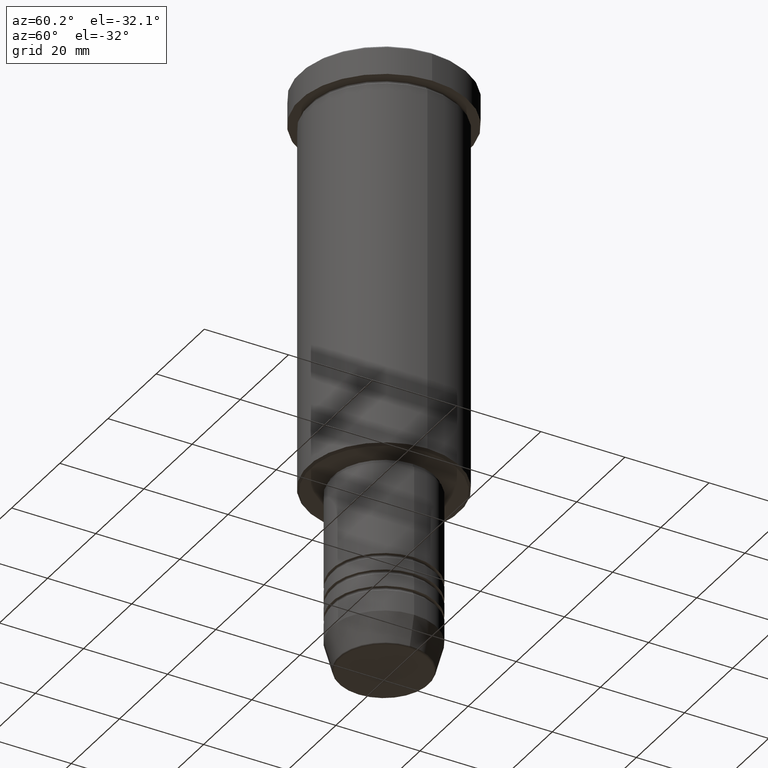
[diagram: clean part render]
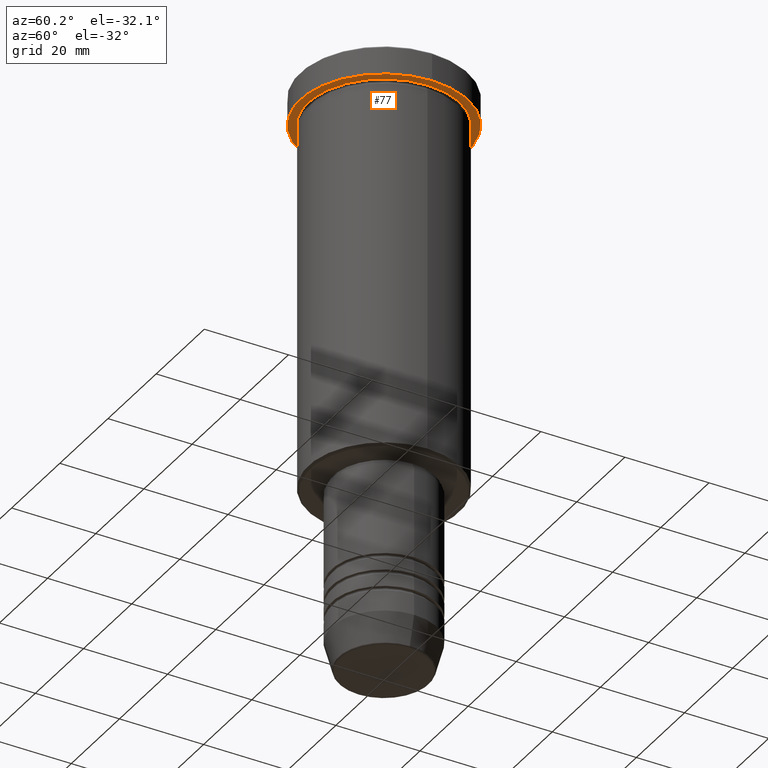
[diagram: same view with one face highlighted and labeled with its STEP entity id]
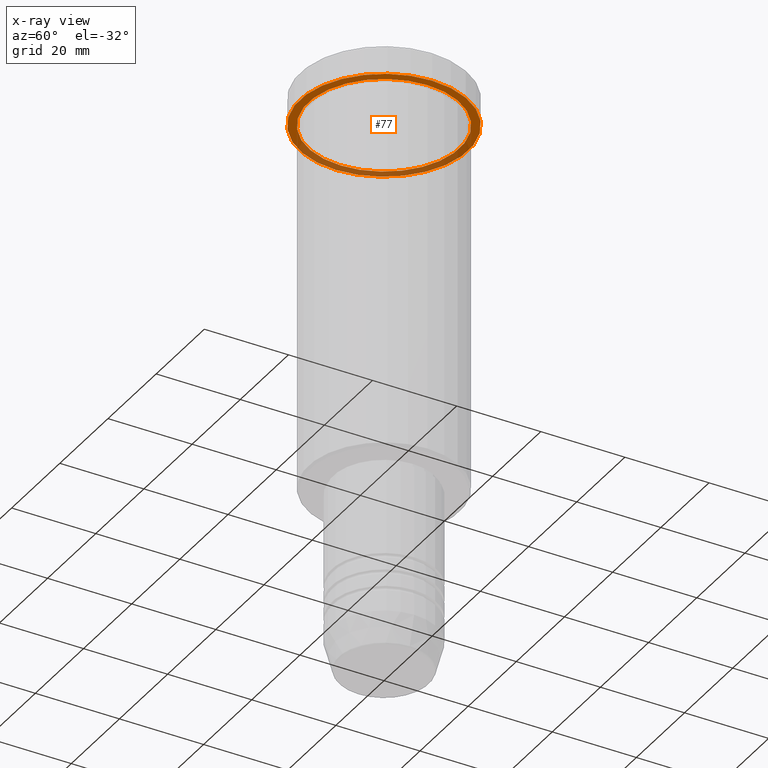
[diagram: x-ray of the same camera — body ghosted, the highlighted face saturated]
A machine part, auxiliary view. The second image highlights one B-rep face of the part: STEP entity #77.
The next image is the same camera in x-ray: the body ghosted, the highlighted face saturated — about 37% of this face is hidden behind the body in this view.
In plain terms, the highlighted planar face has unit normal (0, 0, -1).
Its self-contained STEP definition (entity closure, byte-faithful):
#9 = DIRECTION ( 'NONE',  ( 0.000000000000000000, 0.000000000000000000, -1.000000000000000000 ) ) ;
#24 = VERTEX_POINT ( 'NONE', #153 ) ;
#32 = ORIENTED_EDGE ( 'NONE', *, *, #196, .F. ) ;
#77 = ADVANCED_FACE ( 'NONE', ( #571, #920 ), #203, .T. ) ;
#80 = VERTEX_POINT ( 'NONE', #1086 ) ;
#82 = DIRECTION ( 'NONE',  ( -1.000000000000000000, 0.000000000000000000, -0.000000000000000000 ) ) ;
#92 = EDGE_CURVE ( 'NONE', #80, #694, #472, .T. ) ;
#101 = CARTESIAN_POINT ( 'NONE',  ( 0.000000000000000000, 20.00000000000000000, -6.999999999999995559 ) ) ;
#153 = CARTESIAN_POINT ( 'NONE',  ( -20.00000000000000000, 2.449293598294706513E-15, -6.999999999999995559 ) ) ;
#173 = EDGE_CURVE ( 'NONE', #694, #80, #1016, .T. ) ;
#180 = ORIENTED_EDGE ( 'NONE', *, *, #622, .F. ) ;
#196 = EDGE_CURVE ( 'NONE', #24, #925, #628, .T. ) ;
#203 = PLANE ( 'NONE',  #827 ) ;
#224 = DIRECTION ( 'NONE',  ( 1.000000000000000000, 0.000000000000000000, 0.000000000000000000 ) ) ;
#272 = AXIS2_PLACEMENT_3D ( 'NONE', #562, #855, #224 ) ;
#290 = DIRECTION ( 'NONE',  ( -1.000000000000000000, 0.000000000000000000, 0.000000000000000000 ) ) ;
#297 = CARTESIAN_POINT ( 'NONE',  ( -18.00000000000000000, 0.000000000000000000, -6.999999999999995559 ) ) ;
#343 = ORIENTED_EDGE ( 'NONE', *, *, #92, .T. ) ;
#377 = DIRECTION ( 'NONE',  ( -0.000000000000000000, -0.000000000000000000, 1.000000000000000000 ) ) ;
#446 = CARTESIAN_POINT ( 'NONE',  ( 0.000000000000000000, 0.000000000000000000, -6.999999999999995559 ) ) ;
#467 = DIRECTION ( 'NONE',  ( 1.000000000000000000, 0.000000000000000000, 0.000000000000000000 ) ) ;
#472 = CIRCLE ( 'NONE', #1055, 18.00000000000000000 ) ;
#479 = DIRECTION ( 'NONE',  ( -0.000000000000000000, -0.000000000000000000, 1.000000000000000000 ) ) ;
#562 = CARTESIAN_POINT ( 'NONE',  ( 0.000000000000000000, 0.000000000000000000, -6.999999999999995559 ) ) ;
#571 = FACE_BOUND ( 'NONE', #599, .T. ) ;
#599 = EDGE_LOOP ( 'NONE', ( #828, #343 ) ) ;
#622 = EDGE_CURVE ( 'NONE', #925, #24, #762, .T. ) ;
#628 = CIRCLE ( 'NONE', #272, 20.00000000000000000 ) ;
#655 = DIRECTION ( 'NONE',  ( -0.000000000000000000, -0.000000000000000000, 1.000000000000000000 ) ) ;
#694 = VERTEX_POINT ( 'NONE', #297 ) ;
#706 = AXIS2_PLACEMENT_3D ( 'NONE', #846, #479, #820 ) ;
#762 = CIRCLE ( 'NONE', #853, 20.00000000000000000 ) ;
#820 = DIRECTION ( 'NONE',  ( -1.000000000000000000, 0.000000000000000000, 0.000000000000000000 ) ) ;
#826 = EDGE_LOOP ( 'NONE', ( #180, #32 ) ) ;
#827 = AXIS2_PLACEMENT_3D ( 'NONE', #101, #9, #82 ) ;
#828 = ORIENTED_EDGE ( 'NONE', *, *, #173, .T. ) ;
#846 = CARTESIAN_POINT ( 'NONE',  ( 0.000000000000000000, 0.000000000000000000, -6.999999999999995559 ) ) ;
#853 = AXIS2_PLACEMENT_3D ( 'NONE', #446, #655, #467 ) ;
#855 = DIRECTION ( 'NONE',  ( -0.000000000000000000, -0.000000000000000000, 1.000000000000000000 ) ) ;
#920 = FACE_OUTER_BOUND ( 'NONE', #826, .T. ) ;
#925 = VERTEX_POINT ( 'NONE', #971 ) ;
#971 = CARTESIAN_POINT ( 'NONE',  ( 20.00000000000000000, 0.000000000000000000, -6.999999999999995559 ) ) ;
#1016 = CIRCLE ( 'NONE', #706, 18.00000000000000000 ) ;
#1055 = AXIS2_PLACEMENT_3D ( 'NONE', #1180, #377, #290 ) ;
#1086 = CARTESIAN_POINT ( 'NONE',  ( 18.00000000000000000, 2.204364238465235428E-15, -6.999999999999995559 ) ) ;
#1180 = CARTESIAN_POINT ( 'NONE',  ( 0.000000000000000000, 0.000000000000000000, -6.999999999999995559 ) ) ;